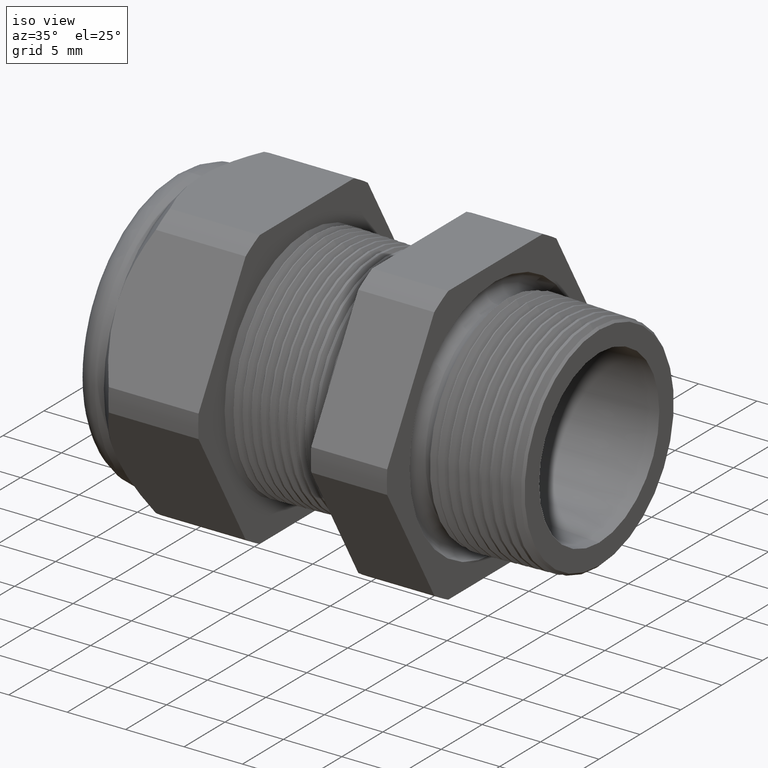
[diagram: clean part render]
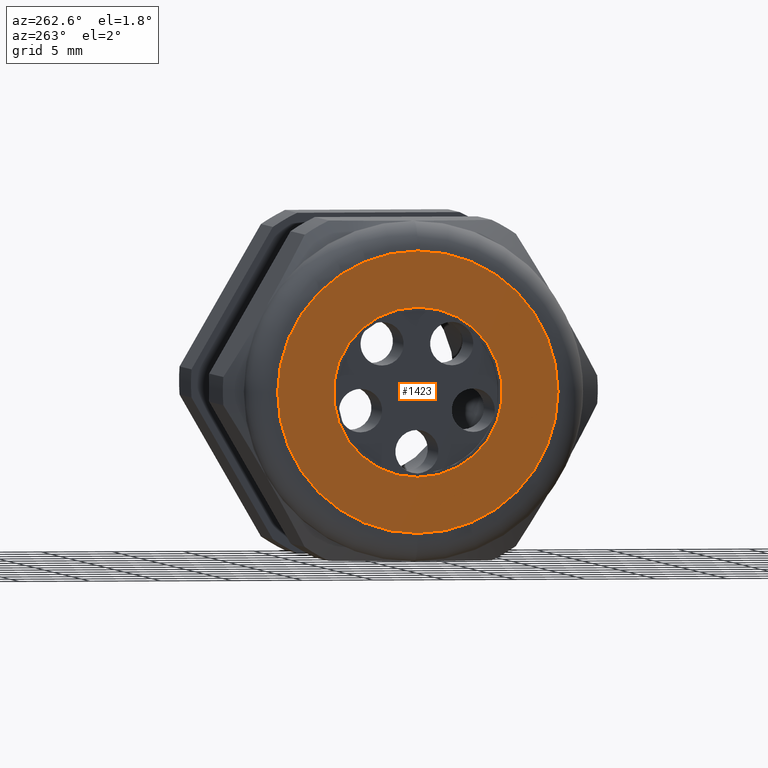
[diagram: tour spotlight — one face highlighted and labeled with its STEP entity id]
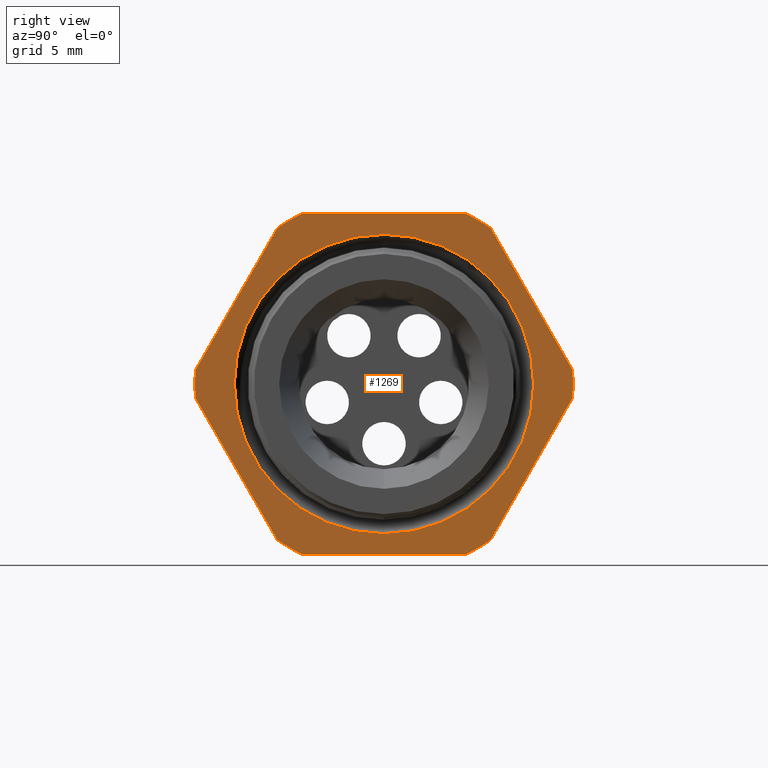
[diagram: tour spotlight — one face highlighted and labeled with its STEP entity id]
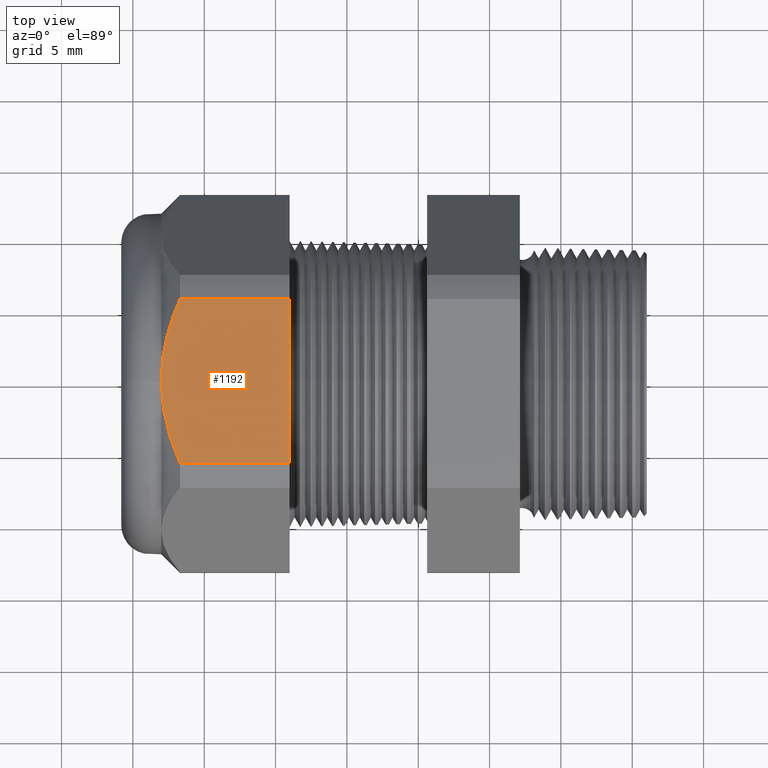
[diagram: tour spotlight — one face highlighted and labeled with its STEP entity id]
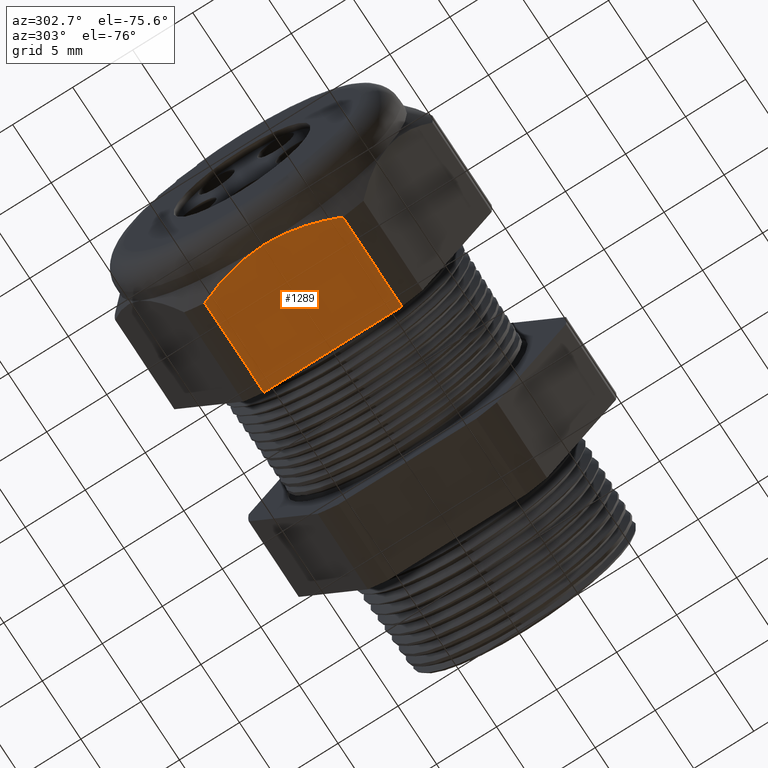
[diagram: tour spotlight — one face highlighted and labeled with its STEP entity id]
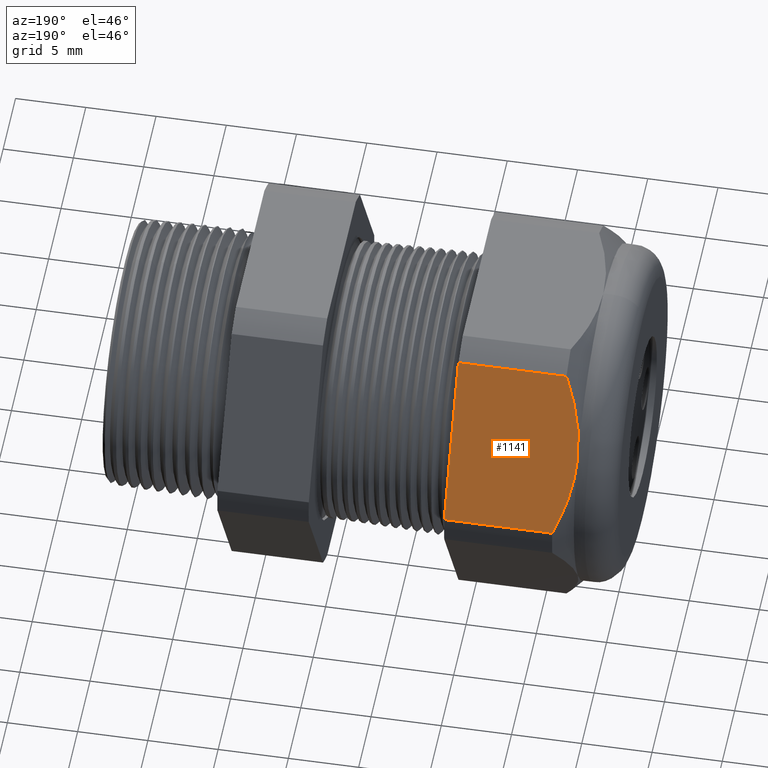
[diagram: tour spotlight — one face highlighted and labeled with its STEP entity id]
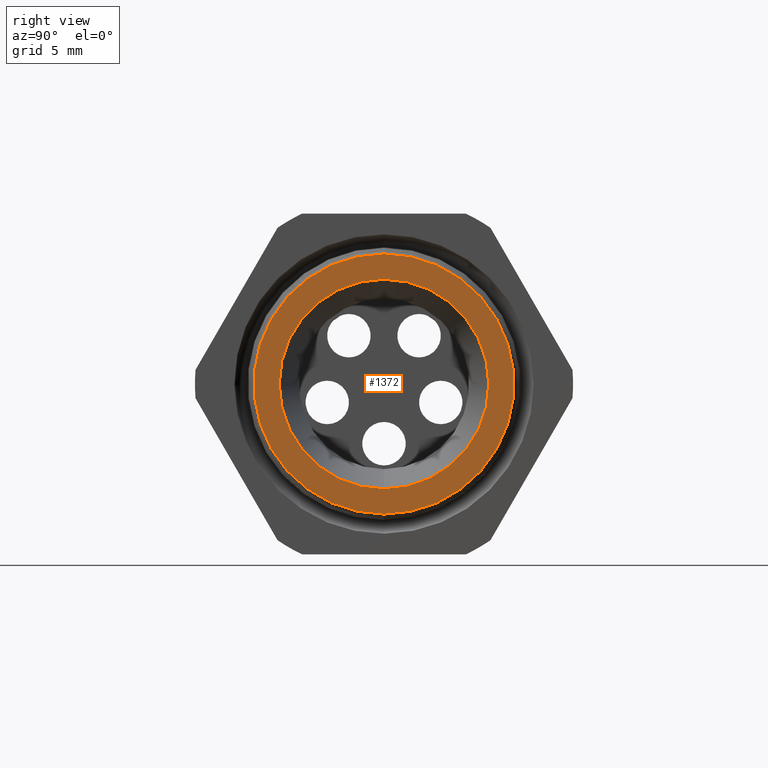
[diagram: tour spotlight — one face highlighted and labeled with its STEP entity id]
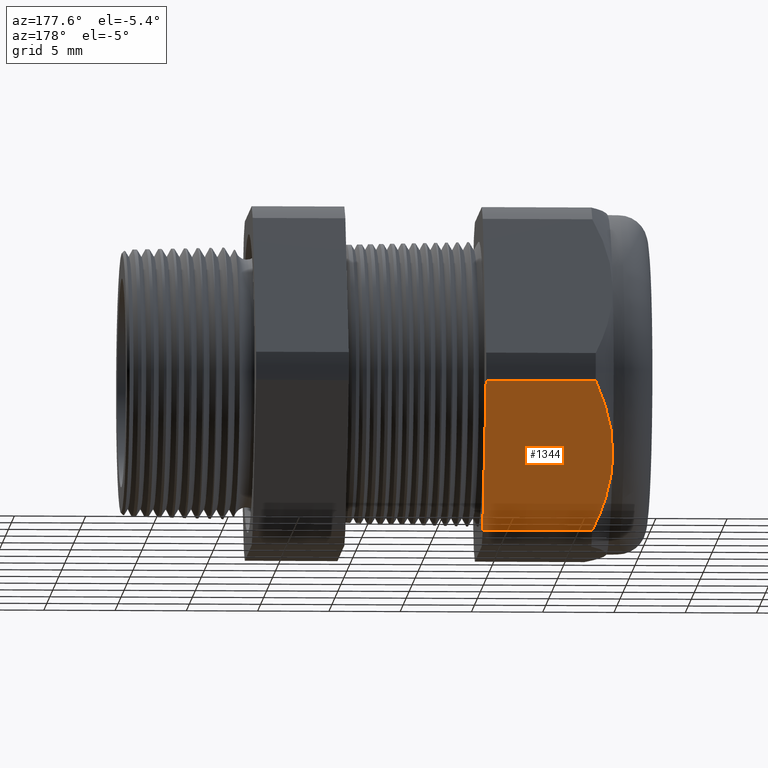
[diagram: tour spotlight — one face highlighted and labeled with its STEP entity id]
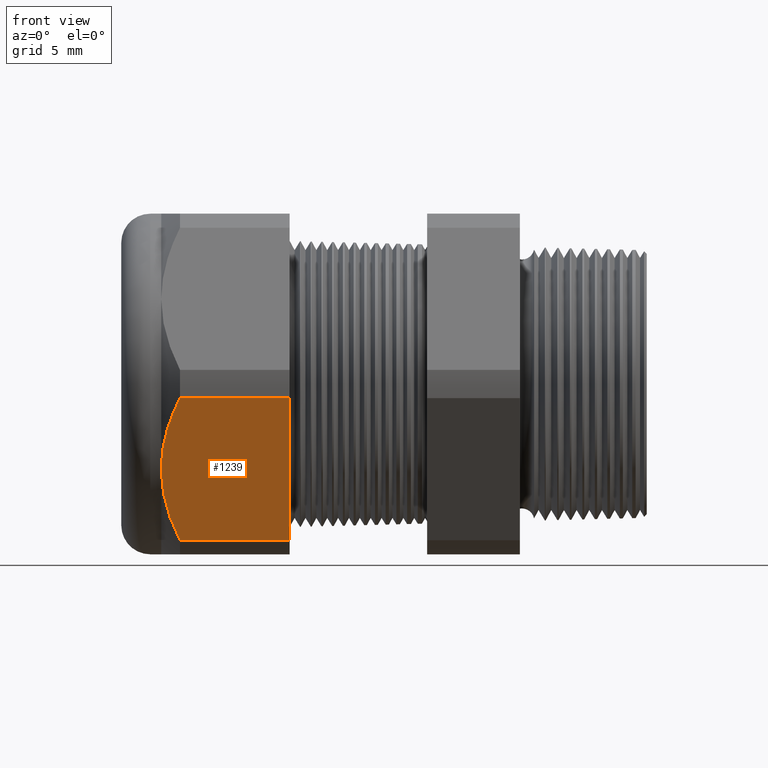
[diagram: tour spotlight — one face highlighted and labeled with its STEP entity id]
A machine part: a face-by-face anatomy tour. The part has 196 B-rep faces; the first image is the clean iso view, then the 8 largest visible faces are spotlighted one at a time (largest first), each with its STEP entity span.

Face 1 — auxiliary view, entity #1423. In plain terms, the highlighted planar face has unit normal (-1, 0, 0).
Definition (entity closure, byte-faithful):
#213 = VERTEX_POINT ( 'NONE', #2237 ) ;
#218 = VERTEX_POINT ( 'NONE', #2296 ) ;
#219 = EDGE_CURVE ( 'NONE', #218, #213, #2295, .T. ) ;
#281 = EDGE_CURVE ( 'NONE', #288, #282, #2373, .T. ) ;
#282 = VERTEX_POINT ( 'NONE', #2368 ) ;
#288 = VERTEX_POINT ( 'NONE', #2415 ) ;
#1345 = EDGE_LOOP ( 'NONE', ( #1346, #1347 ) ) ;
#1346 = ORIENTED_EDGE ( 'NONE', *, *, #219, .T. ) ;
#1347 = ORIENTED_EDGE ( 'NONE', *, *, #1348, .T. ) ;
#1348 = EDGE_CURVE ( 'NONE', #213, #218, #4535, .T. ) ;
#1349 = EDGE_LOOP ( 'NONE', ( #1350, #1351 ) ) ;
#1350 = ORIENTED_EDGE ( 'NONE', *, *, #1420, .T. ) ;
#1351 = ORIENTED_EDGE ( 'NONE', *, *, #281, .T. ) ;
#1420 = EDGE_CURVE ( 'NONE', #282, #288, #4610, .T. ) ;
#1423 = ADVANCED_FACE ( 'NONE', ( #4611, #4605 ), #4604, .T. ) ;
#2237 = CARTESIAN_POINT ( 'NONE',  ( -1.409999999999999900, 5.265981236333617600E-017, -0.3899999999999999600 ) ) ;
#2291 = DIRECTION ( 'NONE',  ( 0.0000000000000000000, 0.0000000000000000000, 1.000000000000000000 ) ) ;
#2292 = DIRECTION ( 'NONE',  ( -1.000000000000000000, 0.0000000000000000000, 0.0000000000000000000 ) ) ;
#2293 = CARTESIAN_POINT ( 'NONE',  ( -1.409999999999999900, 0.0000000000000000000, 0.0000000000000000000 ) ) ;
#2294 = AXIS2_PLACEMENT_3D ( 'NONE', #2293, #2292, #2291 ) ;
#2295 = CIRCLE ( 'NONE', #2294, 0.3899999999999999600 ) ;
#2296 = CARTESIAN_POINT ( 'NONE',  ( -1.409999999999999900, 0.0000000000000000000, 0.3899999999999999600 ) ) ;
#2368 = CARTESIAN_POINT ( 'NONE',  ( -1.409999999999999900, 0.0000000000000000000, -0.2349999999999999900 ) ) ;
#2369 = DIRECTION ( 'NONE',  ( 0.0000000000000000000, 0.0000000000000000000, -1.000000000000000000 ) ) ;
#2370 = DIRECTION ( 'NONE',  ( 1.000000000000000000, 0.0000000000000000000, 0.0000000000000000000 ) ) ;
#2371 = CARTESIAN_POINT ( 'NONE',  ( -1.409999999999999900, 0.0000000000000000000, 0.0000000000000000000 ) ) ;
#2372 = AXIS2_PLACEMENT_3D ( 'NONE', #2371, #2370, #2369 ) ;
#2373 = CIRCLE ( 'NONE', #2372, 0.2349999999999999900 ) ;
#2415 = CARTESIAN_POINT ( 'NONE',  ( -1.409999999999999900, 2.877919977996279800E-017, 0.2349999999999999900 ) ) ;
#4531 = DIRECTION ( 'NONE',  ( 0.0000000000000000000, 0.0000000000000000000, 1.000000000000000000 ) ) ;
#4532 = DIRECTION ( 'NONE',  ( -1.000000000000000000, 0.0000000000000000000, 0.0000000000000000000 ) ) ;
#4533 = CARTESIAN_POINT ( 'NONE',  ( -1.409999999999999900, 0.0000000000000000000, 0.0000000000000000000 ) ) ;
#4534 = AXIS2_PLACEMENT_3D ( 'NONE', #4533, #4532, #4531 ) ;
#4535 = CIRCLE ( 'NONE', #4534, 0.3899999999999999600 ) ;
#4599 = DIRECTION ( 'NONE',  ( 0.0000000000000000000, 0.0000000000000000000, 1.000000000000000000 ) ) ;
#4600 = DIRECTION ( 'NONE',  ( -1.000000000000000000, 0.0000000000000000000, 0.0000000000000000000 ) ) ;
#4601 = CARTESIAN_POINT ( 'NONE',  ( -1.409999999999999900, 0.4699999999999999200, 0.0000000000000000000 ) ) ;
#4602 = AXIS2_PLACEMENT_3D ( 'NONE', #4601, #4600, #4599 ) ;
#4604 = PLANE ( 'NONE',  #4602 ) ;
#4605 = FACE_BOUND ( 'NONE', #1349, .T. ) ;
#4606 = DIRECTION ( 'NONE',  ( 0.0000000000000000000, 0.0000000000000000000, -1.000000000000000000 ) ) ;
#4607 = DIRECTION ( 'NONE',  ( 1.000000000000000000, 0.0000000000000000000, 0.0000000000000000000 ) ) ;
#4608 = CARTESIAN_POINT ( 'NONE',  ( -1.409999999999999900, 0.0000000000000000000, 0.0000000000000000000 ) ) ;
#4609 = AXIS2_PLACEMENT_3D ( 'NONE', #4608, #4607, #4606 ) ;
#4610 = CIRCLE ( 'NONE', #4609, 0.2349999999999999900 ) ;
#4611 = FACE_OUTER_BOUND ( 'NONE', #1345, .T. ) ;

Face 2 — right view, entity #1269. In plain terms, the highlighted planar face has unit normal (1, 0, 0).
Definition (entity closure, byte-faithful):
#684 = EDGE_CURVE ( 'NONE', #693, #685, #3145, .T. ) ;
#685 = VERTEX_POINT ( 'NONE', #3140 ) ;
#693 = VERTEX_POINT ( 'NONE', #3188 ) ;
#1269 = ADVANCED_FACE ( 'NONE', ( #4341, #4340 ), #4339, .T. ) ;
#1303 = EDGE_CURVE ( 'NONE', #1382, #1304, #4426, .T. ) ;
#1304 = VERTEX_POINT ( 'NONE', #4421 ) ;
#1305 = ORIENTED_EDGE ( 'NONE', *, *, #1306, .T. ) ;
#1306 = EDGE_CURVE ( 'NONE', #1304, #1307, #4420, .T. ) ;
#1307 = VERTEX_POINT ( 'NONE', #4416 ) ;
#1308 = ORIENTED_EDGE ( 'NONE', *, *, #1309, .T. ) ;
#1309 = EDGE_CURVE ( 'NONE', #1307, #1334, #4415, .T. ) ;
#1313 = ORIENTED_EDGE ( 'NONE', *, *, #1314, .T. ) ;
#1314 = EDGE_CURVE ( 'NONE', #1341, #1315, #4469, .T. ) ;
#1315 = VERTEX_POINT ( 'NONE', #4465 ) ;
#1316 = ORIENTED_EDGE ( 'NONE', *, *, #1317, .T. ) ;
#1317 = EDGE_CURVE ( 'NONE', #1315, #1318, #4464, .T. ) ;
#1318 = VERTEX_POINT ( 'NONE', #4460 ) ;
#1319 = ORIENTED_EDGE ( 'NONE', *, *, #1320, .T. ) ;
#1320 = EDGE_CURVE ( 'NONE', #1318, #1321, #4459, .T. ) ;
#1321 = VERTEX_POINT ( 'NONE', #4454 ) ;
#1322 = ORIENTED_EDGE ( 'NONE', *, *, #1323, .T. ) ;
#1323 = EDGE_CURVE ( 'NONE', #1321, #1324, #4453, .T. ) ;
#1324 = VERTEX_POINT ( 'NONE', #4449 ) ;
#1325 = ORIENTED_EDGE ( 'NONE', *, *, #1326, .T. ) ;
#1326 = EDGE_CURVE ( 'NONE', #1324, #1379, #4447, .T. ) ;
#1327 = EDGE_LOOP ( 'NONE', ( #1328, #1330 ) ) ;
#1328 = ORIENTED_EDGE ( 'NONE', *, *, #1329, .F. ) ;
#1329 = EDGE_CURVE ( 'NONE', #685, #693, #4505, .T. ) ;
#1330 = ORIENTED_EDGE ( 'NONE', *, *, #684, .F. ) ;
#1331 = EDGE_LOOP ( 'NONE', ( #1332, #1336, #1339, #1313, #1316, #1319, #1322, #1325, #1380, #1383, #1305, #1308 ) ) ;
#1332 = ORIENTED_EDGE ( 'NONE', *, *, #1333, .T. ) ;
#1333 = EDGE_CURVE ( 'NONE', #1334, #1335, #4501, .T. ) ;
#1334 = VERTEX_POINT ( 'NONE', #4497 ) ;
#1335 = VERTEX_POINT ( 'NONE', #4496 ) ;
#1336 = ORIENTED_EDGE ( 'NONE', *, *, #1337, .T. ) ;
#1337 = EDGE_CURVE ( 'NONE', #1335, #1338, #4495, .T. ) ;
#1338 = VERTEX_POINT ( 'NONE', #4490 ) ;
#1339 = ORIENTED_EDGE ( 'NONE', *, *, #1340, .T. ) ;
#1340 = EDGE_CURVE ( 'NONE', #1338, #1341, #4489, .T. ) ;
#1341 = VERTEX_POINT ( 'NONE', #4485 ) ;
#1379 = VERTEX_POINT ( 'NONE', #4543 ) ;
#1380 = ORIENTED_EDGE ( 'NONE', *, *, #1381, .T. ) ;
#1381 = EDGE_CURVE ( 'NONE', #1379, #1382, #4542, .T. ) ;
#1382 = VERTEX_POINT ( 'NONE', #4538 ) ;
#1383 = ORIENTED_EDGE ( 'NONE', *, *, #1303, .T. ) ;
#3140 = CARTESIAN_POINT ( 'NONE',  ( -0.3100000000000000000, 0.0000000000000000000, -0.4130016155952135900 ) ) ;
#3141 = DIRECTION ( 'NONE',  ( 0.0000000000000000000, 0.0000000000000000000, -1.000000000000000000 ) ) ;
#3142 = DIRECTION ( 'NONE',  ( 1.000000000000000000, 0.0000000000000000000, 0.0000000000000000000 ) ) ;
#3143 = CARTESIAN_POINT ( 'NONE',  ( -0.3100000000000000000, 0.0000000000000000000, 0.0000000000000000000 ) ) ;
#3144 = AXIS2_PLACEMENT_3D ( 'NONE', #3143, #3142, #3141 ) ;
#3145 = CIRCLE ( 'NONE', #3144, 0.4130016155952135900 ) ;
#3188 = CARTESIAN_POINT ( 'NONE',  ( -0.3100000000000000000, 5.057811065813639400E-017, 0.4130016155952135900 ) ) ;
#4335 = DIRECTION ( 'NONE',  ( 0.0000000000000000000, 0.0000000000000000000, -1.000000000000000000 ) ) ;
#4336 = DIRECTION ( 'NONE',  ( 1.000000000000000000, 0.0000000000000000000, 0.0000000000000000000 ) ) ;
#4337 = CARTESIAN_POINT ( 'NONE',  ( -0.3100000000000000000, 0.9399999999999999500, 0.0000000000000000000 ) ) ;
#4338 = AXIS2_PLACEMENT_3D ( 'NONE', #4337, #4336, #4335 ) ;
#4339 = PLANE ( 'NONE',  #4338 ) ;
#4340 = FACE_OUTER_BOUND ( 'NONE', #1331, .T. ) ;
#4341 = FACE_BOUND ( 'NONE', #1327, .T. ) ;
#4411 = DIRECTION ( 'NONE',  ( 0.0000000000000000000, 0.0000000000000000000, -1.000000000000000000 ) ) ;
#4412 = DIRECTION ( 'NONE',  ( 1.000000000000000000, 0.0000000000000000000, 0.0000000000000000000 ) ) ;
#4413 = CARTESIAN_POINT ( 'NONE',  ( -0.3100000000000000000, 0.0000000000000000000, 0.0000000000000000000 ) ) ;
#4414 = AXIS2_PLACEMENT_3D ( 'NONE', #4413, #4412, #4411 ) ;
#4415 = CIRCLE ( 'NONE', #4414, 0.5217000000000000500 ) ;
#4416 = CARTESIAN_POINT ( 'NONE',  ( -0.3100000000000000000, 0.2264307620443831200, -0.4700000000000000300 ) ) ;
#4417 = DIRECTION ( 'NONE',  ( 0.0000000000000000000, 1.000000000000000000, 0.0000000000000000000 ) ) ;
#4418 = VECTOR ( 'NONE', #4417, 39.37007874015748100 ) ;
#4419 = CARTESIAN_POINT ( 'NONE',  ( -0.3100000000000000000, 0.9399999999999999500, -0.4700000000000000300 ) ) ;
#4420 = LINE ( 'NONE', #4419, #4418 ) ;
#4421 = CARTESIAN_POINT ( 'NONE',  ( -0.3100000000000000000, -0.2264307620443830900, -0.4700000000000000300 ) ) ;
#4422 = DIRECTION ( 'NONE',  ( 0.0000000000000000000, 0.0000000000000000000, -1.000000000000000000 ) ) ;
#4423 = DIRECTION ( 'NONE',  ( 1.000000000000000000, 0.0000000000000000000, 0.0000000000000000000 ) ) ;
#4424 = CARTESIAN_POINT ( 'NONE',  ( -0.3100000000000000000, 0.0000000000000000000, 0.0000000000000000000 ) ) ;
#4425 = AXIS2_PLACEMENT_3D ( 'NONE', #4424, #4423, #4422 ) ;
#4426 = CIRCLE ( 'NONE', #4425, 0.5217000000000000500 ) ;
#4443 = DIRECTION ( 'NONE',  ( 0.0000000000000000000, 0.0000000000000000000, -1.000000000000000000 ) ) ;
#4444 = DIRECTION ( 'NONE',  ( 1.000000000000000000, 0.0000000000000000000, 0.0000000000000000000 ) ) ;
#4445 = CARTESIAN_POINT ( 'NONE',  ( -0.3100000000000000000, 0.0000000000000000000, 0.0000000000000000000 ) ) ;
#4446 = AXIS2_PLACEMENT_3D ( 'NONE', #4445, #4444, #4443 ) ;
#4447 = CIRCLE ( 'NONE', #4446, 0.5217000000000000500 ) ;
#4448 = CARTESIAN_POINT ( 'NONE',  ( -0.3100000000000000000, 0.0000000000000000000, 0.0000000000000000000 ) ) ;
#4449 = CARTESIAN_POINT ( 'NONE',  ( -0.3100000000000000000, -0.5202473208008777700, 0.03890520787129464500 ) ) ;
#4450 = DIRECTION ( 'NONE',  ( 0.0000000000000000000, -0.4999999999999997200, -0.8660254037844388200 ) ) ;
#4451 = VECTOR ( 'NONE', #4450, 39.37007874015748100 ) ;
#4452 = CARTESIAN_POINT ( 'NONE',  ( -0.3100000000000000000, -0.1720319397786864200, 0.6420319397786857800 ) ) ;
#4453 = LINE ( 'NONE', #4452, #4451 ) ;
#4454 = CARTESIAN_POINT ( 'NONE',  ( -0.3100000000000000000, -0.2938165587564948700, 0.4310947921287048800 ) ) ;
#4455 = DIRECTION ( 'NONE',  ( 0.0000000000000000000, 0.0000000000000000000, -1.000000000000000000 ) ) ;
#4456 = DIRECTION ( 'NONE',  ( 1.000000000000000000, 0.0000000000000000000, 0.0000000000000000000 ) ) ;
#4457 = CARTESIAN_POINT ( 'NONE',  ( -0.3100000000000000000, 0.0000000000000000000, 0.0000000000000000000 ) ) ;
#4458 = AXIS2_PLACEMENT_3D ( 'NONE', #4457, #4456, #4455 ) ;
#4459 = CIRCLE ( 'NONE', #4458, 0.5217000000000000500 ) ;
#4460 = CARTESIAN_POINT ( 'NONE',  ( -0.3100000000000000000, -0.2264307620443835600, 0.4699999999999997500 ) ) ;
#4461 = DIRECTION ( 'NONE',  ( 0.0000000000000000000, -1.000000000000000000, 0.0000000000000000000 ) ) ;
#4462 = VECTOR ( 'NONE', #4461, 39.37007874015748100 ) ;
#4463 = CARTESIAN_POINT ( 'NONE',  ( -0.3100000000000000000, 0.9399999999999999500, 0.4699999999999999200 ) ) ;
#4464 = LINE ( 'NONE', #4463, #4462 ) ;
#4465 = CARTESIAN_POINT ( 'NONE',  ( -0.3100000000000000000, 0.2264307620443832800, 0.4699999999999999200 ) ) ;
#4466 = DIRECTION ( 'NONE',  ( 0.0000000000000000000, 0.0000000000000000000, -1.000000000000000000 ) ) ;
#4467 = DIRECTION ( 'NONE',  ( 1.000000000000000000, 0.0000000000000000000, 0.0000000000000000000 ) ) ;
#4468 = AXIS2_PLACEMENT_3D ( 'NONE', #4474, #4467, #4466 ) ;
#4469 = CIRCLE ( 'NONE', #4468, 0.5217000000000000500 ) ;
#4474 = CARTESIAN_POINT ( 'NONE',  ( -0.3100000000000000000, 0.0000000000000000000, 0.0000000000000000000 ) ) ;
#4485 = CARTESIAN_POINT ( 'NONE',  ( -0.3100000000000000000, 0.2938165587564948700, 0.4310947921287048800 ) ) ;
#4486 = DIRECTION ( 'NONE',  ( 0.0000000000000000000, -0.4999999999999998300, 0.8660254037844386000 ) ) ;
#4487 = VECTOR ( 'NONE', #4486, 39.37007874015748900 ) ;
#4488 = CARTESIAN_POINT ( 'NONE',  ( -0.3100000000000000000, 0.6420319397786862200, -0.1720319397786860500 ) ) ;
#4489 = LINE ( 'NONE', #4488, #4487 ) ;
#4490 = CARTESIAN_POINT ( 'NONE',  ( -0.3100000000000000000, 0.5202473208008776600, 0.03890520787129518600 ) ) ;
#4491 = DIRECTION ( 'NONE',  ( 0.0000000000000000000, 0.0000000000000000000, -1.000000000000000000 ) ) ;
#4492 = DIRECTION ( 'NONE',  ( 1.000000000000000000, 0.0000000000000000000, 0.0000000000000000000 ) ) ;
#4493 = CARTESIAN_POINT ( 'NONE',  ( -0.3100000000000000000, 0.0000000000000000000, 0.0000000000000000000 ) ) ;
#4494 = AXIS2_PLACEMENT_3D ( 'NONE', #4493, #4492, #4491 ) ;
#4495 = CIRCLE ( 'NONE', #4494, 0.5217000000000000500 ) ;
#4496 = CARTESIAN_POINT ( 'NONE',  ( -0.3100000000000000000, 0.5202473208008777700, -0.03890520787129528300 ) ) ;
#4497 = CARTESIAN_POINT ( 'NONE',  ( -0.3100000000000000000, 0.2938165587564948700, -0.4310947921287048800 ) ) ;
#4498 = DIRECTION ( 'NONE',  ( 0.0000000000000000000, 0.5000000000000000000, 0.8660254037844386000 ) ) ;
#4499 = VECTOR ( 'NONE', #4498, 39.37007874015748900 ) ;
#4500 = CARTESIAN_POINT ( 'NONE',  ( -0.3100000000000000000, 0.6420319397786863300, 0.1720319397786860500 ) ) ;
#4501 = LINE ( 'NONE', #4500, #4499 ) ;
#4502 = DIRECTION ( 'NONE',  ( 0.0000000000000000000, 0.0000000000000000000, -1.000000000000000000 ) ) ;
#4503 = DIRECTION ( 'NONE',  ( 1.000000000000000000, 0.0000000000000000000, 0.0000000000000000000 ) ) ;
#4504 = AXIS2_PLACEMENT_3D ( 'NONE', #4448, #4503, #4502 ) ;
#4505 = CIRCLE ( 'NONE', #4504, 0.4130016155952135900 ) ;
#4538 = CARTESIAN_POINT ( 'NONE',  ( -0.3100000000000000000, -0.2938165587564942600, -0.4310947921287053300 ) ) ;
#4539 = DIRECTION ( 'NONE',  ( 0.0000000000000000000, 0.5000000000000001100, -0.8660254037844384900 ) ) ;
#4540 = VECTOR ( 'NONE', #4539, 39.37007874015748900 ) ;
#4541 = CARTESIAN_POINT ( 'NONE',  ( -0.3100000000000000000, -0.1720319397786861700, -0.6420319397786864400 ) ) ;
#4542 = LINE ( 'NONE', #4541, #4540 ) ;
#4543 = CARTESIAN_POINT ( 'NONE',  ( -0.3100000000000000000, -0.5202473208008777700, -0.03890520787129494300 ) ) ;

Face 3 — top view, entity #1192. In plain terms, the highlighted planar face has unit normal (0, 0, 1).
Definition (entity closure, byte-faithful):
#227 = VERTEX_POINT ( 'NONE', #2277 ) ;
#1192 = ADVANCED_FACE ( 'NONE', ( #4140 ), #4146, .T. ) ;
#1193 = EDGE_LOOP ( 'NONE', ( #1194, #1195, #1197, #1200, #1257 ) ) ;
#1194 = ORIENTED_EDGE ( 'NONE', *, *, #1215, .T. ) ;
#1195 = ORIENTED_EDGE ( 'NONE', *, *, #1196, .T. ) ;
#1196 = EDGE_CURVE ( 'NONE', #1213, #227, #4195, .T. ) ;
#1197 = ORIENTED_EDGE ( 'NONE', *, *, #1198, .T. ) ;
#1198 = EDGE_CURVE ( 'NONE', #227, #1199, #4193, .T. ) ;
#1199 = VERTEX_POINT ( 'NONE', #4192 ) ;
#1200 = ORIENTED_EDGE ( 'NONE', *, *, #1201, .F. ) ;
#1201 = EDGE_CURVE ( 'NONE', #1202, #1199, #4194, .T. ) ;
#1202 = VERTEX_POINT ( 'NONE', #4231 ) ;
#1213 = VERTEX_POINT ( 'NONE', #4210 ) ;
#1215 = EDGE_CURVE ( 'NONE', #1216, #1213, #4209, .T. ) ;
#1216 = VERTEX_POINT ( 'NONE', #4205 ) ;
#1257 = ORIENTED_EDGE ( 'NONE', *, *, #1258, .F. ) ;
#1258 = EDGE_CURVE ( 'NONE', #1216, #1202, #4307, .T. ) ;
#2277 = CARTESIAN_POINT ( 'NONE',  ( -1.299763779527559200, 0.0000000000000000000, 0.4699999999999999200 ) ) ;
#4140 = FACE_OUTER_BOUND ( 'NONE', #1193, .T. ) ;
#4146 = PLANE ( 'NONE',  #4199 ) ;
#4171 = DIRECTION ( 'NONE',  ( -1.000000000000000000, 0.0000000000000000000, 0.0000000000000000000 ) ) ;
#4172 = VECTOR ( 'NONE', #4171, 39.37007874015748100 ) ;
#4173 = CARTESIAN_POINT ( 'NONE',  ( 0.04000000000000011900, -0.2264307620443835600, 0.4699999999999997500 ) ) ;
#4174 = CARTESIAN_POINT ( 'NONE',  ( -1.248063779527559300, -0.2264307620443835900, 0.4699999999999999200 ) ) ;
#4175 = CARTESIAN_POINT ( 'NONE',  ( -1.255800659726856300, -0.2086048696456210800, 0.4700000000000000300 ) ) ;
#4176 = CARTESIAN_POINT ( 'NONE',  ( -1.262949366997028400, -0.1904348960138968800, 0.4699999999999999200 ) ) ;
#4177 = CARTESIAN_POINT ( 'NONE',  ( -1.275712352585575800, -0.1532690879941745200, 0.4699999999999997500 ) ) ;
#4178 = CARTESIAN_POINT ( 'NONE',  ( -1.281231388637372700, -0.1345390626635396500, 0.4699999999999999200 ) ) ;
#4179 = CARTESIAN_POINT ( 'NONE',  ( -1.294778598172673200, -0.07783554612607102000, 0.4699999999999999200 ) ) ;
#4180 = CARTESIAN_POINT ( 'NONE',  ( -1.299763779527558900, -0.03934296915062179800, 0.4699999999999998600 ) ) ;
#4181 = CARTESIAN_POINT ( 'NONE',  ( -1.299763779527559200, 0.0000000000000000000, 0.4699999999999999200 ) ) ;
#4182 = CARTESIAN_POINT ( 'NONE',  ( -1.299763779527559200, 0.0000000000000000000, 0.4699999999999999200 ) ) ;
#4183 = CARTESIAN_POINT ( 'NONE',  ( -1.299763779527559200, 0.01964242875915815600, 0.4699999999999999200 ) ) ;
#4184 = CARTESIAN_POINT ( 'NONE',  ( -1.298517019735540900, 0.03924163778662356100, 0.4699999999999999700 ) ) ;
#4185 = CARTESIAN_POINT ( 'NONE',  ( -1.293749478914869100, 0.07782038235249977300, 0.4699999999999999200 ) ) ;
#4186 = CARTESIAN_POINT ( 'NONE',  ( -1.290231001418866900, 0.09688970369981479700, 0.4699999999999999700 ) ) ;
#4187 = CARTESIAN_POINT ( 'NONE',  ( -1.281202062721104900, 0.1346420459264778800, 0.4699999999999999200 ) ) ;
#4188 = CARTESIAN_POINT ( 'NONE',  ( -1.275692781244512700, 0.1533252955870067800, 0.4699999999999999200 ) ) ;
#4189 = CARTESIAN_POINT ( 'NONE',  ( -1.262974602953726100, 0.1903621927138390800, 0.4699999999999999700 ) ) ;
#4190 = CARTESIAN_POINT ( 'NONE',  ( -1.255800509309333000, 0.2086052162099335800, 0.4699999999999997500 ) ) ;
#4191 = CARTESIAN_POINT ( 'NONE',  ( -1.248063779527559300, 0.2264307620443832800, 0.4699999999999999200 ) ) ;
#4192 = CARTESIAN_POINT ( 'NONE',  ( -1.248063779527559300, -0.2264307620443835900, 0.4699999999999999200 ) ) ;
#4193 = B_SPLINE_CURVE_WITH_KNOTS ( 'NONE', 3,
 ( #4181, #4180, #4179, #4178, #4177, #4176, #4175, #4174 ),
 .UNSPECIFIED., .F., .F.,
 ( 4, 2, 2, 4 ),
 ( 0.01501897965151427300, 0.01796263803772293500, 0.01943446723082726400, 0.02090629642393159600 ),
 .UNSPECIFIED. ) ;
#4194 = LINE ( 'NONE', #4173, #4172 ) ;
#4195 = B_SPLINE_CURVE_WITH_KNOTS ( 'NONE', 3,
 ( #4191, #4190, #4189, #4188, #4187, #4186, #4185, #4184, #4183, #4182 ),
 .UNSPECIFIED., .F., .F.,
 ( 4, 2, 2, 2, 4 ),
 ( 0.009140358755258070800, 0.01061001397932212100, 0.01207966920338617200, 0.01354932442745022300, 0.01501897965151427300 ),
 .UNSPECIFIED. ) ;
#4196 = DIRECTION ( 'NONE',  ( 1.000000000000000000, 0.0000000000000000000, 0.0000000000000000000 ) ) ;
#4197 = DIRECTION ( 'NONE',  ( 0.0000000000000000000, 0.0000000000000000000, 1.000000000000000000 ) ) ;
#4198 = CARTESIAN_POINT ( 'NONE',  ( 0.04000000000000011900, -0.2264307620443832800, 0.4699999999999999200 ) ) ;
#4199 = AXIS2_PLACEMENT_3D ( 'NONE', #4198, #4197, #4196 ) ;
#4205 = CARTESIAN_POINT ( 'NONE',  ( -0.9454330708661420300, 0.2264307620443832800, 0.4699999999999999200 ) ) ;
#4206 = DIRECTION ( 'NONE',  ( -1.000000000000000000, 0.0000000000000000000, 0.0000000000000000000 ) ) ;
#4207 = VECTOR ( 'NONE', #4206, 39.37007874015748100 ) ;
#4208 = CARTESIAN_POINT ( 'NONE',  ( 0.04000000000000011900, 0.2264307620443832800, 0.4699999999999999200 ) ) ;
#4209 = LINE ( 'NONE', #4208, #4207 ) ;
#4210 = CARTESIAN_POINT ( 'NONE',  ( -1.248063779527559300, 0.2264307620443832800, 0.4699999999999999200 ) ) ;
#4231 = CARTESIAN_POINT ( 'NONE',  ( -0.9454330708661420300, -0.2264307620443835600, 0.4699999999999997500 ) ) ;
#4300 = DIRECTION ( 'NONE',  ( 0.0000000000000000000, -1.000000000000000000, 0.0000000000000000000 ) ) ;
#4301 = VECTOR ( 'NONE', #4300, 39.37007874015748100 ) ;
#4302 = CARTESIAN_POINT ( 'NONE',  ( -0.9454330708661420300, 0.3950000000000000200, 0.4699999999999999200 ) ) ;
#4307 = LINE ( 'NONE', #4302, #4301 ) ;

Face 4 — auxiliary view, entity #1289. In plain terms, the highlighted planar face has unit normal (0, 0, -1).
Definition (entity closure, byte-faithful):
#241 = VERTEX_POINT ( 'NONE', #2318 ) ;
#1229 = VERTEX_POINT ( 'NONE', #4242 ) ;
#1270 = ORIENTED_EDGE ( 'NONE', *, *, #1271, .F. ) ;
#1271 = EDGE_CURVE ( 'NONE', #1272, #1296, #4334, .T. ) ;
#1272 = VERTEX_POINT ( 'NONE', #4330 ) ;
#1273 = ORIENTED_EDGE ( 'NONE', *, *, #1274, .F. ) ;
#1274 = EDGE_CURVE ( 'NONE', #1286, #1272, #4329, .T. ) ;
#1285 = EDGE_CURVE ( 'NONE', #1286, #1229, #4368, .T. ) ;
#1286 = VERTEX_POINT ( 'NONE', #4364 ) ;
#1289 = ADVANCED_FACE ( 'NONE', ( #4358 ), #4357, .T. ) ;
#1290 = EDGE_LOOP ( 'NONE', ( #1291, #1292, #1294, #1270, #1273 ) ) ;
#1291 = ORIENTED_EDGE ( 'NONE', *, *, #1285, .T. ) ;
#1292 = ORIENTED_EDGE ( 'NONE', *, *, #1293, .T. ) ;
#1293 = EDGE_CURVE ( 'NONE', #1229, #241, #4408, .T. ) ;
#1294 = ORIENTED_EDGE ( 'NONE', *, *, #1295, .T. ) ;
#1295 = EDGE_CURVE ( 'NONE', #241, #1296, #4398, .T. ) ;
#1296 = VERTEX_POINT ( 'NONE', #4399 ) ;
#2318 = CARTESIAN_POINT ( 'NONE',  ( -1.299763779527559200, 0.0000000000000000000, -0.4700000000000000300 ) ) ;
#4242 = CARTESIAN_POINT ( 'NONE',  ( -1.248063779527559300, -0.2264307620443830600, -0.4700000000000000300 ) ) ;
#4326 = DIRECTION ( 'NONE',  ( 0.0000000000000000000, 1.000000000000000000, 0.0000000000000000000 ) ) ;
#4327 = VECTOR ( 'NONE', #4326, 39.37007874015748100 ) ;
#4328 = CARTESIAN_POINT ( 'NONE',  ( -0.9454330708661420300, 0.3950000000000000200, -0.4700000000000000300 ) ) ;
#4329 = LINE ( 'NONE', #4328, #4327 ) ;
#4330 = CARTESIAN_POINT ( 'NONE',  ( -0.9454330708661420300, 0.2264307620443831200, -0.4700000000000000300 ) ) ;
#4331 = DIRECTION ( 'NONE',  ( -1.000000000000000000, 0.0000000000000000000, 0.0000000000000000000 ) ) ;
#4332 = VECTOR ( 'NONE', #4331, 39.37007874015748100 ) ;
#4333 = CARTESIAN_POINT ( 'NONE',  ( 0.04000000000000011900, 0.2264307620443831200, -0.4700000000000000300 ) ) ;
#4334 = LINE ( 'NONE', #4333, #4332 ) ;
#4353 = DIRECTION ( 'NONE',  ( -1.000000000000000000, 0.0000000000000000000, 0.0000000000000000000 ) ) ;
#4354 = DIRECTION ( 'NONE',  ( 0.0000000000000000000, 0.0000000000000000000, -1.000000000000000000 ) ) ;
#4355 = CARTESIAN_POINT ( 'NONE',  ( 0.04000000000000011900, 0.2264307620443830900, -0.4700000000000000300 ) ) ;
#4356 = AXIS2_PLACEMENT_3D ( 'NONE', #4355, #4354, #4353 ) ;
#4357 = PLANE ( 'NONE',  #4356 ) ;
#4358 = FACE_OUTER_BOUND ( 'NONE', #1290, .T. ) ;
#4364 = CARTESIAN_POINT ( 'NONE',  ( -0.9454330708661420300, -0.2264307620443830900, -0.4700000000000000300 ) ) ;
#4365 = DIRECTION ( 'NONE',  ( -1.000000000000000000, 0.0000000000000000000, 0.0000000000000000000 ) ) ;
#4366 = VECTOR ( 'NONE', #4365, 39.37007874015748100 ) ;
#4367 = CARTESIAN_POINT ( 'NONE',  ( 0.04000000000000011900, -0.2264307620443830900, -0.4700000000000000300 ) ) ;
#4368 = LINE ( 'NONE', #4367, #4366 ) ;
#4388 = CARTESIAN_POINT ( 'NONE',  ( -1.248063779527559300, 0.2264307620443831200, -0.4700000000000000300 ) ) ;
#4389 = CARTESIAN_POINT ( 'NONE',  ( -1.255800509309333400, 0.2086052162099334700, -0.4700000000000000300 ) ) ;
#4390 = CARTESIAN_POINT ( 'NONE',  ( -1.262974602953726300, 0.1903621927138388900, -0.4700000000000000300 ) ) ;
#4391 = CARTESIAN_POINT ( 'NONE',  ( -1.275692781244513400, 0.1533252955870066900, -0.4700000000000000800 ) ) ;
#4392 = CARTESIAN_POINT ( 'NONE',  ( -1.281202062721105600, 0.1346420459264778300, -0.4700000000000002000 ) ) ;
#4393 = CARTESIAN_POINT ( 'NONE',  ( -1.290231001418866700, 0.09688970369981478300, -0.4699999999999999700 ) ) ;
#4394 = CARTESIAN_POINT ( 'NONE',  ( -1.293749478914868700, 0.07782038235249985600, -0.4700000000000000300 ) ) ;
#4395 = CARTESIAN_POINT ( 'NONE',  ( -1.298517019735541300, 0.03924163778662365800, -0.4700000000000000300 ) ) ;
#4396 = CARTESIAN_POINT ( 'NONE',  ( -1.299763779527558900, 0.01964242875915822200, -0.4700000000000000800 ) ) ;
#4397 = CARTESIAN_POINT ( 'NONE',  ( -1.299763779527559200, 0.0000000000000000000, -0.4700000000000000300 ) ) ;
#4398 = B_SPLINE_CURVE_WITH_KNOTS ( 'NONE', 3,
 ( #4397, #4396, #4395, #4394, #4393, #4392, #4391, #4390, #4389, #4388 ),
 .UNSPECIFIED., .F., .F.,
 ( 4, 2, 2, 2, 4 ),
 ( 0.01398828679202869000, 0.01545854684696777000, 0.01692880690190685200, 0.01839906695684593100, 0.01986932701178501000 ),
 .UNSPECIFIED. ) ;
#4399 = CARTESIAN_POINT ( 'NONE',  ( -1.248063779527559300, 0.2264307620443831200, -0.4700000000000000300 ) ) ;
#4400 = CARTESIAN_POINT ( 'NONE',  ( -1.299763779527559200, 0.0000000000000000000, -0.4700000000000000300 ) ) ;
#4401 = CARTESIAN_POINT ( 'NONE',  ( -1.299763779527558900, -0.03934296915062162500, -0.4699999999999999200 ) ) ;
#4402 = CARTESIAN_POINT ( 'NONE',  ( -1.294778598172672500, -0.07783554612607064500, -0.4699999999999999700 ) ) ;
#4403 = CARTESIAN_POINT ( 'NONE',  ( -1.281231388637373400, -0.1345390626635392100, -0.4700000000000000300 ) ) ;
#4404 = CARTESIAN_POINT ( 'NONE',  ( -1.275712352585575800, -0.1532690879941739600, -0.4699999999999999700 ) ) ;
#4405 = CARTESIAN_POINT ( 'NONE',  ( -1.262949366997028900, -0.1904348960138962400, -0.4700000000000000300 ) ) ;
#4406 = CARTESIAN_POINT ( 'NONE',  ( -1.255800659726855600, -0.2086048696456203900, -0.4700000000000000800 ) ) ;
#4407 = CARTESIAN_POINT ( 'NONE',  ( -1.248063779527559300, -0.2264307620443830600, -0.4700000000000000300 ) ) ;
#4408 = B_SPLINE_CURVE_WITH_KNOTS ( 'NONE', 3,
 ( #4407, #4406, #4405, #4404, #4403, #4402, #4401, #4400 ),
 .UNSPECIFIED., .F., .F.,
 ( 4, 2, 2, 4 ),
 ( 0.008098547117357340200, 0.009570982036025176300, 0.01104341695469301400, 0.01398828679202869000 ),
 .UNSPECIFIED. ) ;

Face 5 — auxiliary view, entity #1141. In plain terms, the highlighted planar face has unit normal (0, 0.866, 0.5).
Definition (entity closure, byte-faithful):
#238 = VERTEX_POINT ( 'NONE', #2324 ) ;
#1141 = ADVANCED_FACE ( 'NONE', ( #4067 ), #4066, .T. ) ;
#1142 = EDGE_LOOP ( 'NONE', ( #1143, #1144, #1146, #1203, #1206 ) ) ;
#1143 = ORIENTED_EDGE ( 'NONE', *, *, #1218, .T. ) ;
#1144 = ORIENTED_EDGE ( 'NONE', *, *, #1145, .T. ) ;
#1145 = EDGE_CURVE ( 'NONE', #1163, #238, #4061, .T. ) ;
#1146 = ORIENTED_EDGE ( 'NONE', *, *, #1147, .T. ) ;
#1147 = EDGE_CURVE ( 'NONE', #238, #1148, #4049, .T. ) ;
#1148 = VERTEX_POINT ( 'NONE', #4105 ) ;
#1163 = VERTEX_POINT ( 'NONE', #4076 ) ;
#1203 = ORIENTED_EDGE ( 'NONE', *, *, #1204, .F. ) ;
#1204 = EDGE_CURVE ( 'NONE', #1205, #1148, #4230, .T. ) ;
#1205 = VERTEX_POINT ( 'NONE', #4226 ) ;
#1206 = ORIENTED_EDGE ( 'NONE', *, *, #1207, .F. ) ;
#1207 = EDGE_CURVE ( 'NONE', #1219, #1205, #4225, .T. ) ;
#1218 = EDGE_CURVE ( 'NONE', #1219, #1163, #4204, .T. ) ;
#1219 = VERTEX_POINT ( 'NONE', #4200 ) ;
#2324 = CARTESIAN_POINT ( 'NONE',  ( -1.299763779527559200, 0.4070319397786864600, 0.2350000000000000400 ) ) ;
#4049 = B_SPLINE_CURVE_WITH_KNOTS ( 'NONE', 3,
 ( #4103, #4102, #4101, #4100, #4099, #4098 ),
 .UNSPECIFIED., .F., .F.,
 ( 4, 2, 4 ),
 ( 0.005903107334592306400, 0.008852512982428768400, 0.01180191863026523000 ),
 .UNSPECIFIED. ) ;
#4050 = CARTESIAN_POINT ( 'NONE',  ( -1.299763779527559200, 0.4070319397786864600, 0.2350000000000000400 ) ) ;
#4051 = CARTESIAN_POINT ( 'NONE',  ( -1.299763779527559200, 0.4119326305003308000, 0.2265117546779303900 ) ) ;
#4052 = CARTESIAN_POINT ( 'NONE',  ( -1.299453644849874100, 0.4168781440523186600, 0.2179458739363668600 ) ) ;
#4053 = CARTESIAN_POINT ( 'NONE',  ( -1.298221849142434900, 0.4267040029977488500, 0.2009269870148766300 ) ) ;
#4054 = CARTESIAN_POINT ( 'NONE',  ( -1.297304216752655800, 0.4315793332085026700, 0.1924826673861758700 ) ) ;
#4055 = CARTESIAN_POINT ( 'NONE',  ( -1.293700751481475300, 0.4460993342073094600, 0.1673332879302910400 ) ) ;
#4056 = CARTESIAN_POINT ( 'NONE',  ( -1.290164085422761400, 0.4556379823307485400, 0.1508118647449734600 ) ) ;
#4057 = CARTESIAN_POINT ( 'NONE',  ( -1.276620445010038200, 0.4838883643614172400, 0.1018807677346241400 ) ) ;
#4058 = CARTESIAN_POINT ( 'NONE',  ( -1.263697825203296000, 0.5022367785154772100, 0.07010038218147680900 ) ) ;
#4059 = CARTESIAN_POINT ( 'NONE',  ( -1.248063779527559300, 0.5202473208008776600, 0.03890520787129517200 ) ) ;
#4061 = B_SPLINE_CURVE_WITH_KNOTS ( 'NONE', 3,
 ( #4059, #4058, #4057, #4056, #4055, #4054, #4053, #4052, #4051, #4050 ),
 .UNSPECIFIED., .F., .F.,
 ( 4, 2, 2, 2, 4 ),
 ( 2.483251536685397000E-007, 0.002951677829872990400, 0.004427392582232648000, 0.005165249958412477200, 0.005903107334592306400 ),
 .UNSPECIFIED. ) ;
#4062 = DIRECTION ( 'NONE',  ( 0.0000000000000000000, -0.4999999999999998300, 0.8660254037844386000 ) ) ;
#4063 = DIRECTION ( 'NONE',  ( 0.0000000000000000000, 0.8660254037844387100, 0.4999999999999998900 ) ) ;
#4064 = CARTESIAN_POINT ( 'NONE',  ( 0.04000000000000011900, 0.2938165587564948200, 0.4310947921287048800 ) ) ;
#4065 = AXIS2_PLACEMENT_3D ( 'NONE', #4064, #4063, #4062 ) ;
#4066 = PLANE ( 'NONE',  #4065 ) ;
#4067 = FACE_OUTER_BOUND ( 'NONE', #1142, .T. ) ;
#4076 = CARTESIAN_POINT ( 'NONE',  ( -1.248063779527559300, 0.5202473208008776600, 0.03890520787129517200 ) ) ;
#4098 = CARTESIAN_POINT ( 'NONE',  ( -1.248063779527559300, 0.2938165587564948700, 0.4310947921287048800 ) ) ;
#4099 = CARTESIAN_POINT ( 'NONE',  ( -1.263717189021966500, 0.3118494083116971600, 0.3998609804938486100 ) ) ;
#4100 = CARTESIAN_POINT ( 'NONE',  ( -1.276822062588142800, 0.3304876304616240500, 0.3675786327674194200 ) ) ;
#4101 = CARTESIAN_POINT ( 'NONE',  ( -1.294818111347314700, 0.3682441305491642200, 0.3021824562998213800 ) ) ;
#4102 = CARTESIAN_POINT ( 'NONE',  ( -1.299763779527558500, 0.3874426189162285500, 0.2689296990195457200 ) ) ;
#4103 = CARTESIAN_POINT ( 'NONE',  ( -1.299763779527559200, 0.4070319397786864600, 0.2350000000000000400 ) ) ;
#4105 = CARTESIAN_POINT ( 'NONE',  ( -1.248063779527559300, 0.2938165587564948700, 0.4310947921287048800 ) ) ;
#4200 = CARTESIAN_POINT ( 'NONE',  ( -0.9454330708661420300, 0.5202473208008776600, 0.03890520787129518600 ) ) ;
#4201 = DIRECTION ( 'NONE',  ( -1.000000000000000000, 0.0000000000000000000, 0.0000000000000000000 ) ) ;
#4202 = VECTOR ( 'NONE', #4201, 39.37007874015748100 ) ;
#4203 = CARTESIAN_POINT ( 'NONE',  ( 0.04000000000000011900, 0.5202473208008776600, 0.03890520787129518600 ) ) ;
#4204 = LINE ( 'NONE', #4203, #4202 ) ;
#4222 = DIRECTION ( 'NONE',  ( 0.0000000000000000000, -0.4999999999999998300, 0.8660254037844386000 ) ) ;
#4223 = VECTOR ( 'NONE', #4222, 39.37007874015748900 ) ;
#4224 = CARTESIAN_POINT ( 'NONE',  ( -0.9454330708661420300, 0.5057819397786861300, 0.06395998275257334900 ) ) ;
#4225 = LINE ( 'NONE', #4224, #4223 ) ;
#4226 = CARTESIAN_POINT ( 'NONE',  ( -0.9454330708661420300, 0.2938165587564948700, 0.4310947921287048800 ) ) ;
#4227 = DIRECTION ( 'NONE',  ( -1.000000000000000000, 0.0000000000000000000, 0.0000000000000000000 ) ) ;
#4228 = VECTOR ( 'NONE', #4227, 39.37007874015748100 ) ;
#4229 = CARTESIAN_POINT ( 'NONE',  ( 0.04000000000000011900, 0.2938165587564948700, 0.4310947921287048800 ) ) ;
#4230 = LINE ( 'NONE', #4229, #4228 ) ;

Face 6 — right view, entity #1372. In plain terms, the highlighted planar face has unit normal (1, 0, 0).
Definition (entity closure, byte-faithful):
#193 = VERTEX_POINT ( 'NONE', #2268 ) ;
#196 = VERTEX_POINT ( 'NONE', #2263 ) ;
#243 = VERTEX_POINT ( 'NONE', #2312 ) ;
#244 = VERTEX_POINT ( 'NONE', #2311 ) ;
#246 = EDGE_CURVE ( 'NONE', #243, #244, #2305, .T. ) ;
#1355 = EDGE_CURVE ( 'NONE', #244, #243, #4523, .T. ) ;
#1356 = ORIENTED_EDGE ( 'NONE', *, *, #246, .F. ) ;
#1372 = ADVANCED_FACE ( 'NONE', ( #4555, #4554 ), #4553, .T. ) ;
#1373 = EDGE_LOOP ( 'NONE', ( #1374, #1376 ) ) ;
#1374 = ORIENTED_EDGE ( 'NONE', *, *, #1375, .T. ) ;
#1375 = EDGE_CURVE ( 'NONE', #196, #193, #4548, .T. ) ;
#1376 = ORIENTED_EDGE ( 'NONE', *, *, #1825, .T. ) ;
#1377 = EDGE_LOOP ( 'NONE', ( #1378, #1356 ) ) ;
#1378 = ORIENTED_EDGE ( 'NONE', *, *, #1355, .F. ) ;
#1825 = EDGE_CURVE ( 'NONE', #193, #196, #5163, .T. ) ;
#2263 = CARTESIAN_POINT ( 'NONE',  ( 0.03999999999999998000, 0.0000000000000000000, 0.3589231061661941600 ) ) ;
#2268 = CARTESIAN_POINT ( 'NONE',  ( 0.03999999999999998000, 4.441516496824528300E-017, -0.3589231061661941600 ) ) ;
#2301 = DIRECTION ( 'NONE',  ( 0.0000000000000000000, 0.0000000000000000000, -1.000000000000000000 ) ) ;
#2302 = DIRECTION ( 'NONE',  ( 1.000000000000000000, 0.0000000000000000000, 0.0000000000000000000 ) ) ;
#2303 = CARTESIAN_POINT ( 'NONE',  ( 0.03999999999999998000, 0.0000000000000000000, 0.0000000000000000000 ) ) ;
#2304 = AXIS2_PLACEMENT_3D ( 'NONE', #2303, #2302, #2301 ) ;
#2305 = CIRCLE ( 'NONE', #2304, 0.2891955268946231900 ) ;
#2311 = CARTESIAN_POINT ( 'NONE',  ( 0.03999999999999998000, 0.0000000000000000000, -0.2891955268946231900 ) ) ;
#2312 = CARTESIAN_POINT ( 'NONE',  ( 0.03999999999999998000, 3.541623763392326200E-017, 0.2891955268946231900 ) ) ;
#4520 = DIRECTION ( 'NONE',  ( 0.0000000000000000000, 0.0000000000000000000, -1.000000000000000000 ) ) ;
#4521 = DIRECTION ( 'NONE',  ( 1.000000000000000000, 0.0000000000000000000, 0.0000000000000000000 ) ) ;
#4522 = AXIS2_PLACEMENT_3D ( 'NONE', #4528, #4521, #4520 ) ;
#4523 = CIRCLE ( 'NONE', #4522, 0.2891955268946231900 ) ;
#4528 = CARTESIAN_POINT ( 'NONE',  ( 0.03999999999999998000, 0.0000000000000000000, 0.0000000000000000000 ) ) ;
#4544 = DIRECTION ( 'NONE',  ( 0.0000000000000000000, 0.0000000000000000000, -1.000000000000000000 ) ) ;
#4545 = DIRECTION ( 'NONE',  ( 1.000000000000000000, 0.0000000000000000000, 0.0000000000000000000 ) ) ;
#4546 = CARTESIAN_POINT ( 'NONE',  ( 0.03999999999999998000, 0.0000000000000000000, 0.0000000000000000000 ) ) ;
#4547 = AXIS2_PLACEMENT_3D ( 'NONE', #4546, #4545, #4544 ) ;
#4548 = CIRCLE ( 'NONE', #4547, 0.3589231061661941600 ) ;
#4549 = DIRECTION ( 'NONE',  ( 0.0000000000000000000, 0.0000000000000000000, -1.000000000000000000 ) ) ;
#4550 = DIRECTION ( 'NONE',  ( 1.000000000000000000, 0.0000000000000000000, 0.0000000000000000000 ) ) ;
#4551 = CARTESIAN_POINT ( 'NONE',  ( 0.03999999999999998000, 0.2891955268946231900, 0.0000000000000000000 ) ) ;
#4552 = AXIS2_PLACEMENT_3D ( 'NONE', #4551, #4550, #4549 ) ;
#4553 = PLANE ( 'NONE',  #4552 ) ;
#4554 = FACE_BOUND ( 'NONE', #1377, .T. ) ;
#4555 = FACE_OUTER_BOUND ( 'NONE', #1373, .T. ) ;
#5155 = DIRECTION ( 'NONE',  ( 0.0000000000000000000, 0.0000000000000000000, -1.000000000000000000 ) ) ;
#5156 = DIRECTION ( 'NONE',  ( 1.000000000000000000, 0.0000000000000000000, 0.0000000000000000000 ) ) ;
#5157 = CARTESIAN_POINT ( 'NONE',  ( 0.03999999999999998000, 0.0000000000000000000, 0.0000000000000000000 ) ) ;
#5158 = AXIS2_PLACEMENT_3D ( 'NONE', #5157, #5156, #5155 ) ;
#5163 = CIRCLE ( 'NONE', #5158, 0.3589231061661941600 ) ;

Face 7 — auxiliary view, entity #1344. In plain terms, the highlighted planar face has unit normal (0, 0.866, -0.5).
Definition (entity closure, byte-faithful):
#99 = CARTESIAN_POINT ( 'NONE',  ( -1.298221849142434900, 0.3873598765596237800, -0.2690730129851237100 ) ) ;
#100 = CARTESIAN_POINT ( 'NONE',  ( -1.299453644849873900, 0.3971857355050538200, -0.2520541260636334200 ) ) ;
#105 = CARTESIAN_POINT ( 'NONE',  ( -1.299763779527559200, 0.4021312490570417300, -0.2434882453220698600 ) ) ;
#106 = CARTESIAN_POINT ( 'NONE',  ( -1.299763779527559200, 0.4070319397786864000, -0.2350000000000001800 ) ) ;
#225 = VERTEX_POINT ( 'NONE', #2279 ) ;
#1158 = EDGE_CURVE ( 'NONE', #1159, #1160, #4086, .T. ) ;
#1159 = VERTEX_POINT ( 'NONE', #4078 ) ;
#1160 = VERTEX_POINT ( 'NONE', #4077 ) ;
#1260 = EDGE_LOOP ( 'NONE', ( #1261, #1262, #1264, #1266, #1267 ) ) ;
#1261 = ORIENTED_EDGE ( 'NONE', *, *, #1282, .T. ) ;
#1262 = ORIENTED_EDGE ( 'NONE', *, *, #1263, .T. ) ;
#1263 = EDGE_CURVE ( 'NONE', #1280, #225, #3290, .T. ) ;
#1264 = ORIENTED_EDGE ( 'NONE', *, *, #1265, .T. ) ;
#1265 = EDGE_CURVE ( 'NONE', #225, #1160, #4352, .T. ) ;
#1266 = ORIENTED_EDGE ( 'NONE', *, *, #1158, .F. ) ;
#1267 = ORIENTED_EDGE ( 'NONE', *, *, #1268, .F. ) ;
#1268 = EDGE_CURVE ( 'NONE', #1283, #1159, #4351, .T. ) ;
#1280 = VERTEX_POINT ( 'NONE', #4374 ) ;
#1282 = EDGE_CURVE ( 'NONE', #1283, #1280, #4373, .T. ) ;
#1283 = VERTEX_POINT ( 'NONE', #4369 ) ;
#1344 = ADVANCED_FACE ( 'NONE', ( #4479 ), #4478, .T. ) ;
#2279 = CARTESIAN_POINT ( 'NONE',  ( -1.299763779527559200, 0.4070319397786864000, -0.2350000000000001800 ) ) ;
#3290 = B_SPLINE_CURVE_WITH_KNOTS ( 'NONE', 3,
 ( #4298, #4290, #4060, #4048, #4047, #4046, #99, #100, #105, #106 ),
 .UNSPECIFIED., .F., .F.,
 ( 4, 2, 2, 2, 4 ),
 ( 2.483251536698716100E-007, 0.002951677829872993000, 0.004427392582232652300, 0.005165249958412478900, 0.005903107334592305600 ),
 .UNSPECIFIED. ) ;
#4046 = CARTESIAN_POINT ( 'NONE',  ( -1.297304216752655600, 0.3824845463488700200, -0.2775173326138244400 ) ) ;
#4047 = CARTESIAN_POINT ( 'NONE',  ( -1.293700751481475100, 0.3679645453500630700, -0.3026667120697090800 ) ) ;
#4048 = CARTESIAN_POINT ( 'NONE',  ( -1.290164085422761200, 0.3584258972266240500, -0.3191881352550267600 ) ) ;
#4060 = CARTESIAN_POINT ( 'NONE',  ( -1.276620445010038200, 0.3301755151959553400, -0.3681192322653760200 ) ) ;
#4077 = CARTESIAN_POINT ( 'NONE',  ( -1.248063779527559300, 0.5202473208008777700, -0.03890520787129524800 ) ) ;
#4078 = CARTESIAN_POINT ( 'NONE',  ( -0.9454330708661420300, 0.5202473208008777700, -0.03890520787129524800 ) ) ;
#4079 = DIRECTION ( 'NONE',  ( -1.000000000000000000, 0.0000000000000000000, 0.0000000000000000000 ) ) ;
#4080 = VECTOR ( 'NONE', #4079, 39.37007874015748100 ) ;
#4081 = CARTESIAN_POINT ( 'NONE',  ( 0.04000000000000011900, 0.5202473208008777700, -0.03890520787129524800 ) ) ;
#4086 = LINE ( 'NONE', #4081, #4080 ) ;
#4290 = CARTESIAN_POINT ( 'NONE',  ( -1.263697825203295800, 0.3118271010418955900, -0.3998996178185232900 ) ) ;
#4298 = CARTESIAN_POINT ( 'NONE',  ( -1.248063779527559300, 0.2938165587564948700, -0.4310947921287048800 ) ) ;
#4342 = DIRECTION ( 'NONE',  ( 0.0000000000000000000, 0.5000000000000000000, 0.8660254037844386000 ) ) ;
#4343 = VECTOR ( 'NONE', #4342, 39.37007874015748900 ) ;
#4344 = CARTESIAN_POINT ( 'NONE',  ( -0.9454330708661420300, 0.5057819397786863500, -0.06395998275257344700 ) ) ;
#4345 = CARTESIAN_POINT ( 'NONE',  ( -1.248063779527559300, 0.5202473208008777700, -0.03890520787129524800 ) ) ;
#4346 = CARTESIAN_POINT ( 'NONE',  ( -1.263717189021966500, 0.5022144712456755300, -0.07013901950615150600 ) ) ;
#4347 = CARTESIAN_POINT ( 'NONE',  ( -1.276822062588142800, 0.4835762490957484200, -0.1024213672325807900 ) ) ;
#4348 = CARTESIAN_POINT ( 'NONE',  ( -1.294818111347314700, 0.4458197490082083700, -0.1678175437001787900 ) ) ;
#4349 = CARTESIAN_POINT ( 'NONE',  ( -1.299763779527558500, 0.4266212606411439200, -0.2010703009804542500 ) ) ;
#4350 = CARTESIAN_POINT ( 'NONE',  ( -1.299763779527559200, 0.4070319397786864000, -0.2350000000000001800 ) ) ;
#4351 = LINE ( 'NONE', #4344, #4343 ) ;
#4352 = B_SPLINE_CURVE_WITH_KNOTS ( 'NONE', 3,
 ( #4350, #4349, #4348, #4347, #4346, #4345 ),
 .UNSPECIFIED., .F., .F.,
 ( 4, 2, 4 ),
 ( 0.005903107334592305600, 0.008852512982428766700, 0.01180191863026522900 ),
 .UNSPECIFIED. ) ;
#4369 = CARTESIAN_POINT ( 'NONE',  ( -0.9454330708661420300, 0.2938165587564948700, -0.4310947921287048800 ) ) ;
#4370 = DIRECTION ( 'NONE',  ( -1.000000000000000000, 0.0000000000000000000, 0.0000000000000000000 ) ) ;
#4371 = VECTOR ( 'NONE', #4370, 39.37007874015748100 ) ;
#4372 = CARTESIAN_POINT ( 'NONE',  ( 0.04000000000000011900, 0.2938165587564948700, -0.4310947921287048800 ) ) ;
#4373 = LINE ( 'NONE', #4372, #4371 ) ;
#4374 = CARTESIAN_POINT ( 'NONE',  ( -1.248063779527559300, 0.2938165587564948700, -0.4310947921287048800 ) ) ;
#4475 = DIRECTION ( 'NONE',  ( 0.0000000000000000000, 0.8660254037844387100, -0.5000000000000001100 ) ) ;
#4476 = CARTESIAN_POINT ( 'NONE',  ( 0.04000000000000011900, 0.5202473208008777700, -0.03890520787129524800 ) ) ;
#4477 = AXIS2_PLACEMENT_3D ( 'NONE', #4476, #4475, #4536 ) ;
#4478 = PLANE ( 'NONE',  #4477 ) ;
#4479 = FACE_OUTER_BOUND ( 'NONE', #1260, .T. ) ;
#4536 = DIRECTION ( 'NONE',  ( 0.0000000000000000000, 0.5000000000000000000, 0.8660254037844386000 ) ) ;

Face 8 — front view, entity #1239. In plain terms, the highlighted planar face has unit normal (0, -0.866, -0.5).
Definition (entity closure, byte-faithful):
#1220 = EDGE_CURVE ( 'NONE', #1221, #1301, #4262, .T. ) ;
#1221 = VERTEX_POINT ( 'NONE', #4258 ) ;
#1222 = ORIENTED_EDGE ( 'NONE', *, *, #1223, .F. ) ;
#1223 = EDGE_CURVE ( 'NONE', #1236, #1221, #4257, .T. ) ;
#1233 = VERTEX_POINT ( 'NONE', #4236 ) ;
#1235 = EDGE_CURVE ( 'NONE', #1236, #1233, #4235, .T. ) ;
#1236 = VERTEX_POINT ( 'NONE', #4289 ) ;
#1239 = ADVANCED_FACE ( 'NONE', ( #4288 ), #4282, .T. ) ;
#1240 = EDGE_LOOP ( 'NONE', ( #1241, #1242, #1299, #1302, #1222 ) ) ;
#1241 = ORIENTED_EDGE ( 'NONE', *, *, #1235, .T. ) ;
#1242 = ORIENTED_EDGE ( 'NONE', *, *, #1297, .T. ) ;
#1297 = EDGE_CURVE ( 'NONE', #1233, #1298, #4386, .T. ) ;
#1298 = VERTEX_POINT ( 'NONE', #4387 ) ;
#1299 = ORIENTED_EDGE ( 'NONE', *, *, #1300, .T. ) ;
#1300 = EDGE_CURVE ( 'NONE', #1298, #1301, #4433, .T. ) ;
#1301 = VERTEX_POINT ( 'NONE', #4434 ) ;
#1302 = ORIENTED_EDGE ( 'NONE', *, *, #1220, .F. ) ;
#4232 = DIRECTION ( 'NONE',  ( -1.000000000000000000, 0.0000000000000000000, 0.0000000000000000000 ) ) ;
#4233 = VECTOR ( 'NONE', #4232, 39.37007874015748100 ) ;
#4234 = CARTESIAN_POINT ( 'NONE',  ( 0.04000000000000011900, -0.5202473208008777700, -0.03890520787129494300 ) ) ;
#4235 = LINE ( 'NONE', #4234, #4233 ) ;
#4236 = CARTESIAN_POINT ( 'NONE',  ( -1.248063779527559300, -0.5202473208008777700, -0.03890520787129500600 ) ) ;
#4254 = DIRECTION ( 'NONE',  ( 0.0000000000000000000, 0.5000000000000001100, -0.8660254037844384900 ) ) ;
#4255 = VECTOR ( 'NONE', #4254, 39.37007874015748900 ) ;
#4256 = CARTESIAN_POINT ( 'NONE',  ( -0.9454330708661420300, -0.3082819397786861200, -0.4060400172474268900 ) ) ;
#4257 = LINE ( 'NONE', #4256, #4255 ) ;
#4258 = CARTESIAN_POINT ( 'NONE',  ( -0.9454330708661420300, -0.2938165587564942600, -0.4310947921287053300 ) ) ;
#4259 = DIRECTION ( 'NONE',  ( -1.000000000000000000, 0.0000000000000000000, 0.0000000000000000000 ) ) ;
#4260 = VECTOR ( 'NONE', #4259, 39.37007874015748100 ) ;
#4261 = CARTESIAN_POINT ( 'NONE',  ( 0.04000000000000011900, -0.2938165587564942600, -0.4310947921287053300 ) ) ;
#4262 = LINE ( 'NONE', #4261, #4260 ) ;
#4278 = DIRECTION ( 'NONE',  ( 0.0000000000000000000, 0.5000000000000001100, -0.8660254037844384900 ) ) ;
#4279 = DIRECTION ( 'NONE',  ( 0.0000000000000000000, -0.8660254037844386000, -0.5000000000000002200 ) ) ;
#4280 = CARTESIAN_POINT ( 'NONE',  ( 0.04000000000000011900, -0.2938165587564944300, -0.4310947921287051600 ) ) ;
#4281 = AXIS2_PLACEMENT_3D ( 'NONE', #4280, #4279, #4278 ) ;
#4282 = PLANE ( 'NONE',  #4281 ) ;
#4288 = FACE_OUTER_BOUND ( 'NONE', #1240, .T. ) ;
#4289 = CARTESIAN_POINT ( 'NONE',  ( -0.9454330708661420300, -0.5202473208008777700, -0.03890520787129494300 ) ) ;
#4384 = CARTESIAN_POINT ( 'NONE',  ( -1.263697825203295100, -0.5022367785154768800, -0.07010038218147664200 ) ) ;
#4385 = CARTESIAN_POINT ( 'NONE',  ( -1.248063779527559300, -0.5202473208008777700, -0.03890520787129500600 ) ) ;
#4386 = B_SPLINE_CURVE_WITH_KNOTS ( 'NONE', 3,
 ( #4385, #4384, #4442, #4441, #4440, #4439, #4438, #4437, #4436, #4435 ),
 .UNSPECIFIED., .F., .F.,
 ( 4, 2, 2, 2, 4 ),
 ( 2.483251536717501700E-007, 0.002951677829872997400, 0.004427392582232655800, 0.005165249958412486800, 0.005903107334592318600 ),
 .UNSPECIFIED. ) ;
#4387 = CARTESIAN_POINT ( 'NONE',  ( -1.299763779527559200, -0.4070319397786861200, -0.2350000000000000100 ) ) ;
#4427 = CARTESIAN_POINT ( 'NONE',  ( -1.248063779527559300, -0.2938165587564942600, -0.4310947921287053300 ) ) ;
#4428 = CARTESIAN_POINT ( 'NONE',  ( -1.263717189021966700, -0.3118494083116968300, -0.3998609804938491100 ) ) ;
#4429 = CARTESIAN_POINT ( 'NONE',  ( -1.276822062588142300, -0.3304876304616236600, -0.3675786327674196400 ) ) ;
#4430 = CARTESIAN_POINT ( 'NONE',  ( -1.294818111347314700, -0.3682441305491639400, -0.3021824562998216000 ) ) ;
#4431 = CARTESIAN_POINT ( 'NONE',  ( -1.299763779527559200, -0.3874426189162282200, -0.2689296990195459400 ) ) ;
#4432 = CARTESIAN_POINT ( 'NONE',  ( -1.299763779527559200, -0.4070319397786861200, -0.2350000000000000100 ) ) ;
#4433 = B_SPLINE_CURVE_WITH_KNOTS ( 'NONE', 3,
 ( #4432, #4431, #4430, #4429, #4428, #4427 ),
 .UNSPECIFIED., .F., .F.,
 ( 4, 2, 4 ),
 ( 0.005903107334592318600, 0.008852512982428784000, 0.01180191863026525300 ),
 .UNSPECIFIED. ) ;
#4434 = CARTESIAN_POINT ( 'NONE',  ( -1.248063779527559300, -0.2938165587564942600, -0.4310947921287053300 ) ) ;
#4435 = CARTESIAN_POINT ( 'NONE',  ( -1.299763779527559200, -0.4070319397786861200, -0.2350000000000000100 ) ) ;
#4436 = CARTESIAN_POINT ( 'NONE',  ( -1.299763779527559400, -0.4119326305003306900, -0.2265117546779304400 ) ) ;
#4437 = CARTESIAN_POINT ( 'NONE',  ( -1.299453644849873900, -0.4168781440523184300, -0.2179458739363668300 ) ) ;
#4438 = CARTESIAN_POINT ( 'NONE',  ( -1.298221849142434900, -0.4267040029977488000, -0.2009269870148766000 ) ) ;
#4439 = CARTESIAN_POINT ( 'NONE',  ( -1.297304216752655800, -0.4315793332085022800, -0.1924826673861758100 ) ) ;
#4440 = CARTESIAN_POINT ( 'NONE',  ( -1.293700751481475600, -0.4460993342073095200, -0.1673332879302910400 ) ) ;
#4441 = CARTESIAN_POINT ( 'NONE',  ( -1.290164085422761200, -0.4556379823307484300, -0.1508118647449733200 ) ) ;
#4442 = CARTESIAN_POINT ( 'NONE',  ( -1.276620445010038200, -0.4838883643614173000, -0.1018807677346239400 ) ) ;